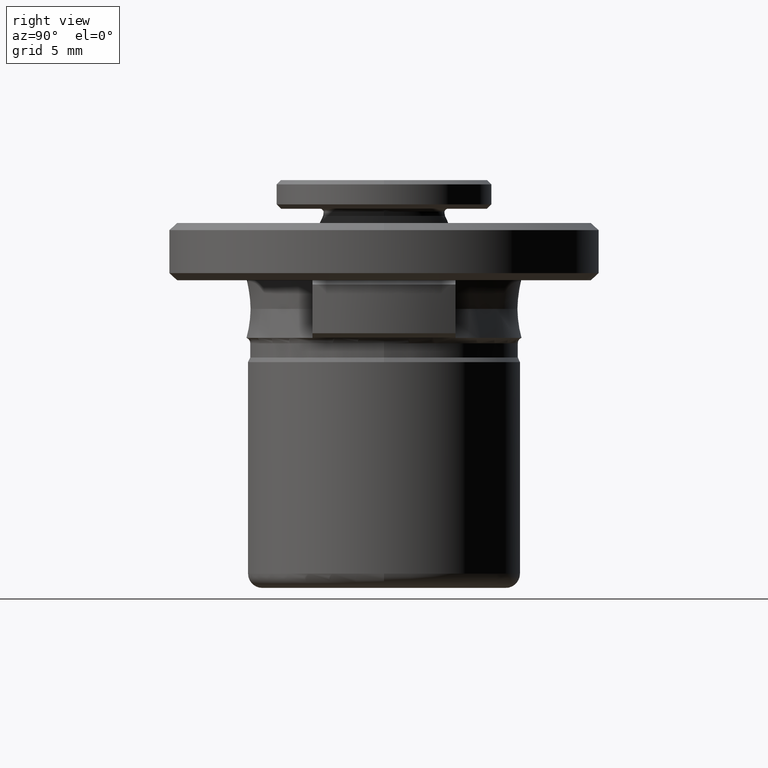
[diagram: clean part render]
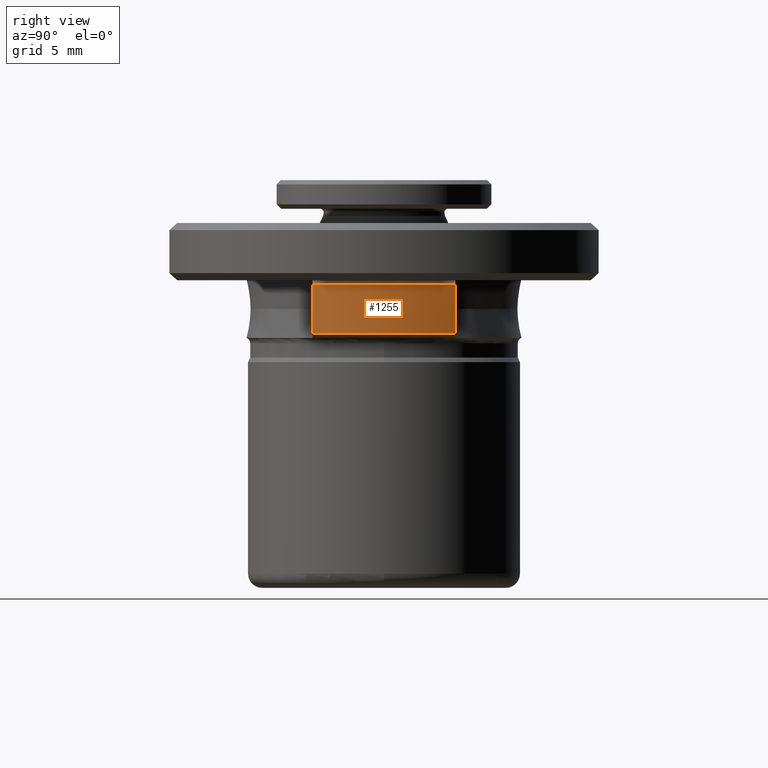
[diagram: same view with one face highlighted and labeled with its STEP entity id]
A machine part, right view. The second image highlights one B-rep face of the part: STEP entity #1255.
In plain terms, the highlighted cylindrical surface (partial cylindrical patch) has radius 12.4 mm, axis along (0, 0, 1).
Its self-contained STEP definition (entity closure, byte-faithful):
#39 = VECTOR ( 'NONE', #102, 1000.000000000000000 ) ;
#102 = DIRECTION ( 'NONE',  ( -0.0000000000000000000, -0.0000000000000000000, 1.000000000000000000 ) ) ;
#105 = DIRECTION ( 'NONE',  ( 0.0000000000000000000, 3.497426362856465100E-017, 1.000000000000000000 ) ) ;
#186 = ORIENTED_EDGE ( 'NONE', *, *, #1824, .T. ) ;
#266 = ORIENTED_EDGE ( 'NONE', *, *, #1591, .F. ) ;
#463 = ORIENTED_EDGE ( 'NONE', *, *, #604, .T. ) ;
#473 = LINE ( 'NONE', #619, #39 ) ;
#501 = ORIENTED_EDGE ( 'NONE', *, *, #507, .F. ) ;
#507 = EDGE_CURVE ( 'NONE', #2004, #1262, #1195, .T. ) ;
#589 = FACE_OUTER_BOUND ( 'NONE', #1866, .T. ) ;
#604 = EDGE_CURVE ( 'NONE', #1350, #1302, #473, .T. ) ;
#619 = CARTESIAN_POINT ( 'NONE',  ( 11.34724636200000000, 5.000000000000000000, 6.725040224999999900 ) ) ;
#740 = CARTESIAN_POINT ( 'NONE',  ( 0.0000000000000000000, 0.0000000000000000000, 5.049999999999998900 ) ) ;
#859 = CARTESIAN_POINT ( 'NONE',  ( 0.0000000000000000000, 0.0000000000000000000, 8.449999999999999300 ) ) ;
#917 = DIRECTION ( 'NONE',  ( 1.000000000000000000, 0.0000000000000000000, 6.994852725712930200E-017 ) ) ;
#952 = CARTESIAN_POINT ( 'NONE',  ( 0.0000000000000000000, 0.0000000000000000000, 5.049999999999998900 ) ) ;
#1035 = DIRECTION ( 'NONE',  ( 1.000000000000000000, 0.0000000000000000000, 1.398970545142586000E-016 ) ) ;
#1124 = DIRECTION ( 'NONE',  ( 1.000000000000000000, 0.0000000000000000000, 6.994852725712930200E-017 ) ) ;
#1129 = CARTESIAN_POINT ( 'NONE',  ( 11.34724636200171400, 5.000000000000000000, 8.450000000001548300 ) ) ;
#1193 = CIRCLE ( 'NONE', #1993, 12.40000000000000200 ) ;
#1195 = CIRCLE ( 'NONE', #1410, 12.40000000000000200 ) ;
#1255 = ADVANCED_FACE ( 'NONE', ( #589 ), #1426, .T. ) ;
#1262 = VERTEX_POINT ( 'NONE', #1613 ) ;
#1302 = VERTEX_POINT ( 'NONE', #1129 ) ;
#1350 = VERTEX_POINT ( 'NONE', #1467 ) ;
#1351 = LINE ( 'NONE', #1690, #1632 ) ;
#1359 = DIRECTION ( 'NONE',  ( 0.0000000000000000000, 0.0000000000000000000, -1.000000000000000000 ) ) ;
#1410 = AXIS2_PLACEMENT_3D ( 'NONE', #740, #1924, #917 ) ;
#1426 = CYLINDRICAL_SURFACE ( 'NONE', #1736, 12.40000000000000200 ) ;
#1467 = CARTESIAN_POINT ( 'NONE',  ( 11.34724636200171400, 5.000000000000000000, 5.049999999998430400 ) ) ;
#1470 = AXIS2_PLACEMENT_3D ( 'NONE', #952, #2130, #1124 ) ;
#1591 = EDGE_CURVE ( 'NONE', #1350, #2004, #2008, .T. ) ;
#1602 = DIRECTION ( 'NONE',  ( 0.0000000000000000000, -1.000000000000000000, 0.0000000000000000000 ) ) ;
#1613 = CARTESIAN_POINT ( 'NONE',  ( 11.34724636193648300, -5.000000000000000000, 5.049999999940308000 ) ) ;
#1632 = VECTOR ( 'NONE', #1359, 1000.000000000000000 ) ;
#1690 = CARTESIAN_POINT ( 'NONE',  ( 11.34724636200000000, -5.000000000000000000, 6.725040224999999900 ) ) ;
#1736 = AXIS2_PLACEMENT_3D ( 'NONE', #1947, #105, #1602 ) ;
#1824 = EDGE_CURVE ( 'NONE', #1971, #1262, #1351, .T. ) ;
#1850 = ORIENTED_EDGE ( 'NONE', *, *, #1867, .F. ) ;
#1866 = EDGE_LOOP ( 'NONE', ( #266, #463, #1850, #186, #501 ) ) ;
#1867 = EDGE_CURVE ( 'NONE', #1971, #1302, #1193, .T. ) ;
#1895 = CARTESIAN_POINT ( 'NONE',  ( 11.34724636202748200, -5.000000000000000000, 8.449999999976419900 ) ) ;
#1924 = DIRECTION ( 'NONE',  ( -0.0000000000000000000, -0.0000000000000000000, -1.000000000000000000 ) ) ;
#1947 = CARTESIAN_POINT ( 'NONE',  ( 0.0000000000000000000, 0.0000000000000000000, 5.049999999999999800 ) ) ;
#1971 = VERTEX_POINT ( 'NONE', #1895 ) ;
#1993 = AXIS2_PLACEMENT_3D ( 'NONE', #859, #2042, #1035 ) ;
#2004 = VERTEX_POINT ( 'NONE', #2074 ) ;
#2008 = CIRCLE ( 'NONE', #1470, 12.40000000000000200 ) ;
#2042 = DIRECTION ( 'NONE',  ( 0.0000000000000000000, 0.0000000000000000000, 1.000000000000000000 ) ) ;
#2074 = CARTESIAN_POINT ( 'NONE',  ( 12.40000000000000200, 0.0000000000000000000, 5.049999999999998900 ) ) ;
#2130 = DIRECTION ( 'NONE',  ( -0.0000000000000000000, -0.0000000000000000000, -1.000000000000000000 ) ) ;